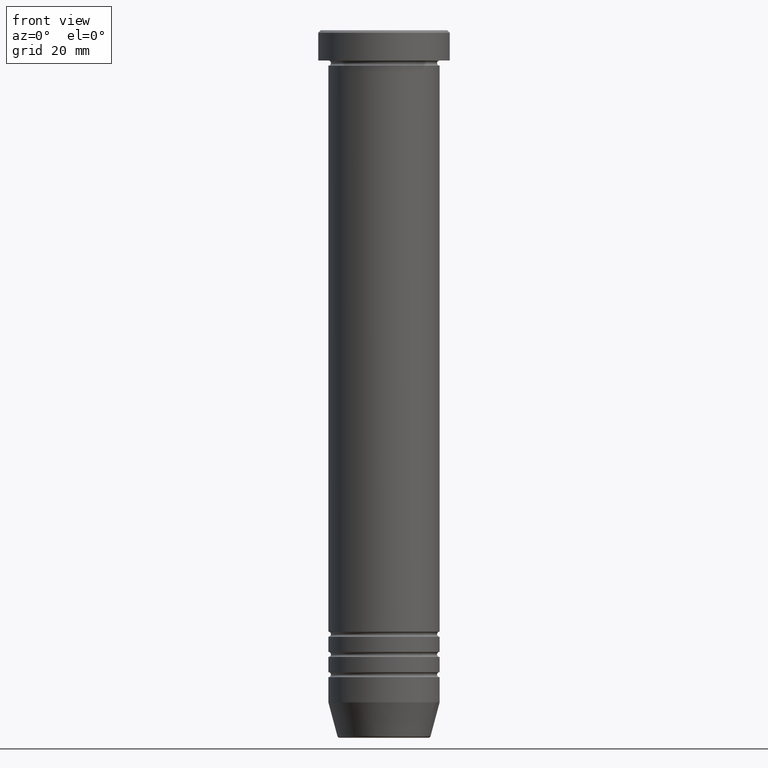
[diagram: clean part render]
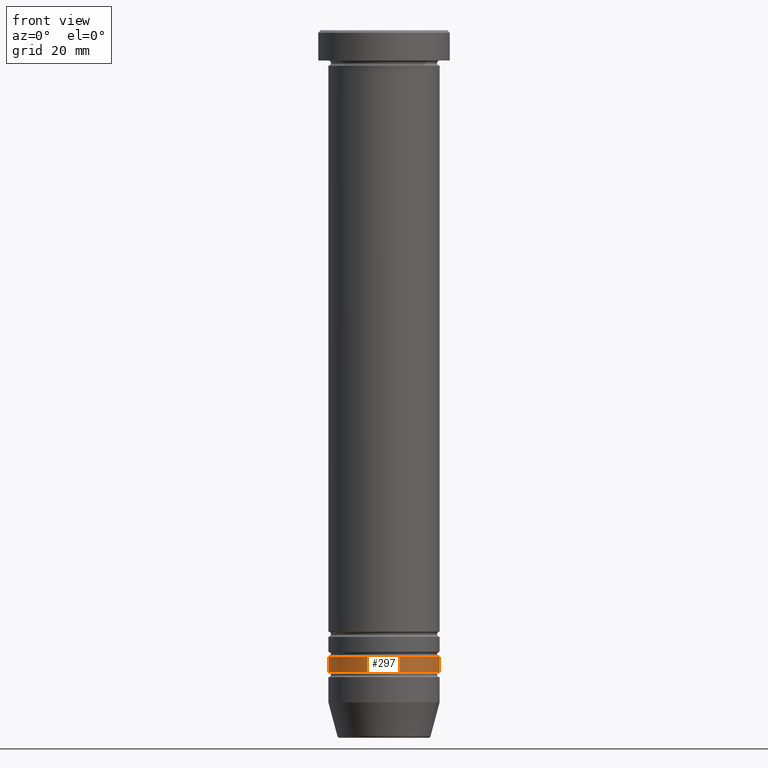
[diagram: same view with one face highlighted and labeled with its STEP entity id]
A machine part, front view. The second image highlights one B-rep face of the part: STEP entity #297.
In plain terms, the highlighted cylindrical surface (partial cylindrical patch) has radius 11 mm, axis along (-0, -0, 1).
Its self-contained STEP definition (entity closure, byte-faithful):
#30 = CYLINDRICAL_SURFACE ( 'NONE', #112, 10.99999999999999645 ) ;
#87 = DIRECTION ( 'NONE',  ( -0.000000000000000000, -0.000000000000000000, 1.000000000000000000 ) ) ;
#112 = AXIS2_PLACEMENT_3D ( 'NONE', #281, #126, #839 ) ;
#122 = AXIS2_PLACEMENT_3D ( 'NONE', #806, #87, #734 ) ;
#125 = ORIENTED_EDGE ( 'NONE', *, *, #589, .T. ) ;
#126 = DIRECTION ( 'NONE',  ( -0.000000000000000000, -0.000000000000000000, 1.000000000000000000 ) ) ;
#151 = CARTESIAN_POINT ( 'NONE',  ( -10.99999999999999822, 1.347111479062088405E-15, -124.0000000000000000 ) ) ;
#155 = CIRCLE ( 'NONE', #122, 10.99999999999999289 ) ;
#160 = CARTESIAN_POINT ( 'NONE',  ( 10.99999999999999645, 0.000000000000000000, 0.000000000000000000 ) ) ;
#176 = DIRECTION ( 'NONE',  ( 1.000000000000000000, 0.000000000000000000, 0.000000000000000000 ) ) ;
#200 = VERTEX_POINT ( 'NONE', #260 ) ;
#260 = CARTESIAN_POINT ( 'NONE',  ( 10.99999999999999289, 0.000000000000000000, -127.0000000000000000 ) ) ;
#281 = CARTESIAN_POINT ( 'NONE',  ( 0.000000000000000000, 0.000000000000000000, 0.000000000000000000 ) ) ;
#297 = ADVANCED_FACE ( 'NONE', ( #591 ), #30, .T. ) ;
#304 = ORIENTED_EDGE ( 'NONE', *, *, #653, .T. ) ;
#347 = LINE ( 'NONE', #756, #1014 ) ;
#430 = DIRECTION ( 'NONE',  ( -0.000000000000000000, -0.000000000000000000, 1.000000000000000000 ) ) ;
#462 = LINE ( 'NONE', #160, #497 ) ;
#490 = DIRECTION ( 'NONE',  ( -0.000000000000000000, -0.000000000000000000, 1.000000000000000000 ) ) ;
#497 = VECTOR ( 'NONE', #569, 1000.000000000000000 ) ;
#508 = CARTESIAN_POINT ( 'NONE',  ( 11.00000000000000000, 0.000000000000000000, -124.0000000000000000 ) ) ;
#543 = ORIENTED_EDGE ( 'NONE', *, *, #770, .F. ) ;
#569 = DIRECTION ( 'NONE',  ( -0.000000000000000000, -0.000000000000000000, 1.000000000000000000 ) ) ;
#571 = VERTEX_POINT ( 'NONE', #151 ) ;
#589 = EDGE_CURVE ( 'NONE', #200, #841, #462, .T. ) ;
#591 = FACE_OUTER_BOUND ( 'NONE', #604, .T. ) ;
#604 = EDGE_LOOP ( 'NONE', ( #543, #304, #125, #753 ) ) ;
#617 = CARTESIAN_POINT ( 'NONE',  ( -10.99999999999999289, 1.347111479062087813E-15, -127.0000000000000000 ) ) ;
#622 = EDGE_CURVE ( 'NONE', #571, #841, #771, .T. ) ;
#653 = EDGE_CURVE ( 'NONE', #913, #200, #155, .T. ) ;
#723 = CARTESIAN_POINT ( 'NONE',  ( 0.000000000000000000, 0.000000000000000000, -124.0000000000000000 ) ) ;
#734 = DIRECTION ( 'NONE',  ( 1.000000000000000000, 0.000000000000000000, 0.000000000000000000 ) ) ;
#753 = ORIENTED_EDGE ( 'NONE', *, *, #622, .F. ) ;
#756 = CARTESIAN_POINT ( 'NONE',  ( -10.99999999999999645, 1.347111479062088010E-15, 0.000000000000000000 ) ) ;
#770 = EDGE_CURVE ( 'NONE', #913, #571, #347, .T. ) ;
#771 = CIRCLE ( 'NONE', #984, 11.00000000000000000 ) ;
#806 = CARTESIAN_POINT ( 'NONE',  ( 0.000000000000000000, 0.000000000000000000, -127.0000000000000000 ) ) ;
#839 = DIRECTION ( 'NONE',  ( 1.000000000000000000, 0.000000000000000000, 0.000000000000000000 ) ) ;
#841 = VERTEX_POINT ( 'NONE', #508 ) ;
#913 = VERTEX_POINT ( 'NONE', #617 ) ;
#984 = AXIS2_PLACEMENT_3D ( 'NONE', #723, #490, #176 ) ;
#1014 = VECTOR ( 'NONE', #430, 1000.000000000000000 ) ;